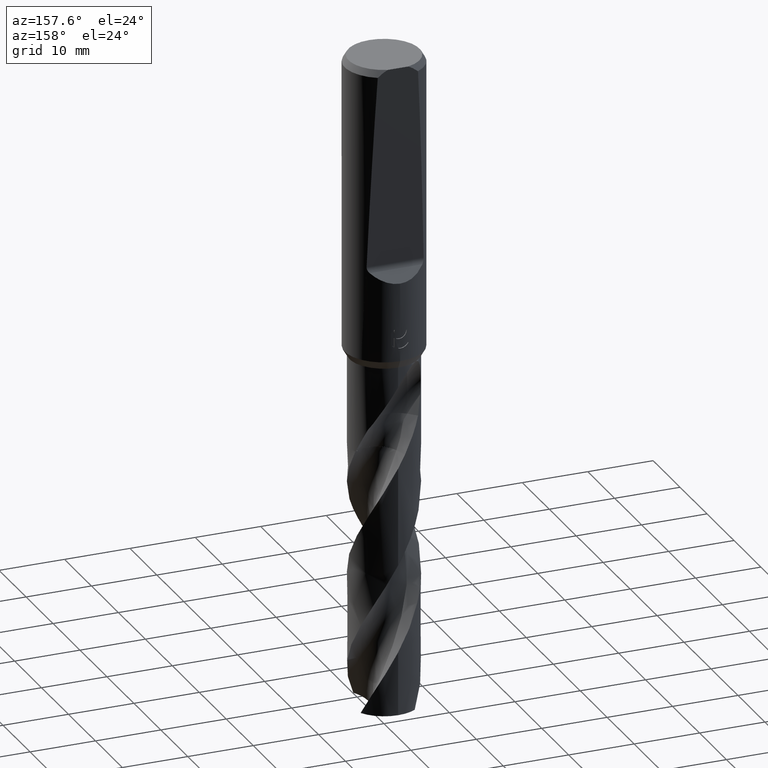
[diagram: clean part render]
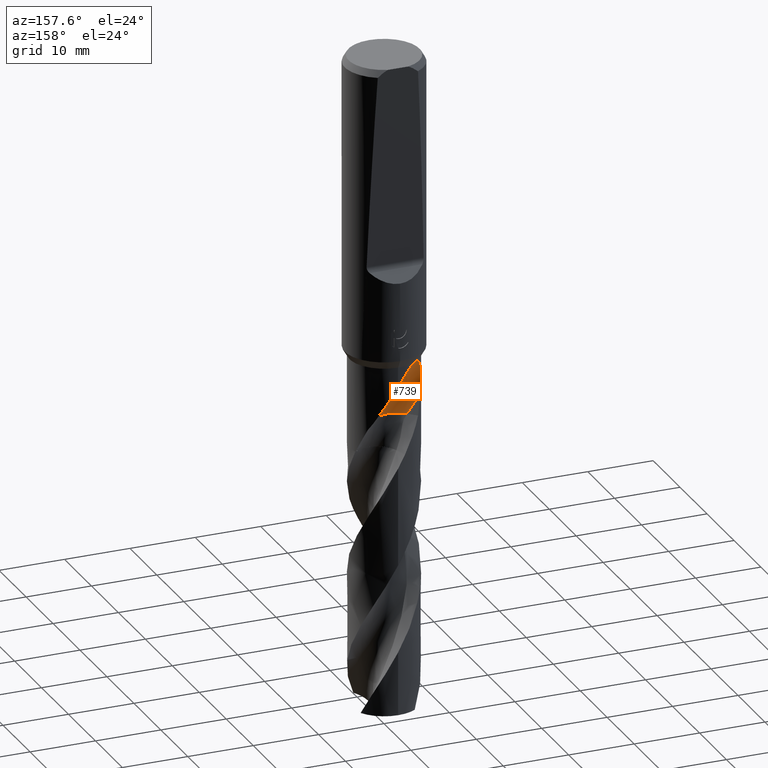
[diagram: same view with one face highlighted and labeled with its STEP entity id]
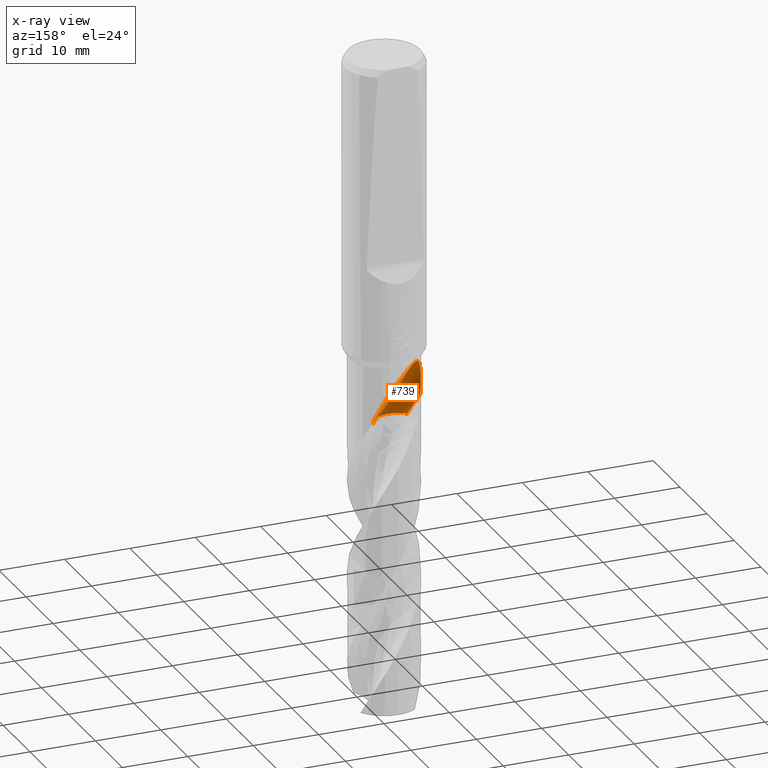
[diagram: x-ray of the same camera — body ghosted, the highlighted face saturated]
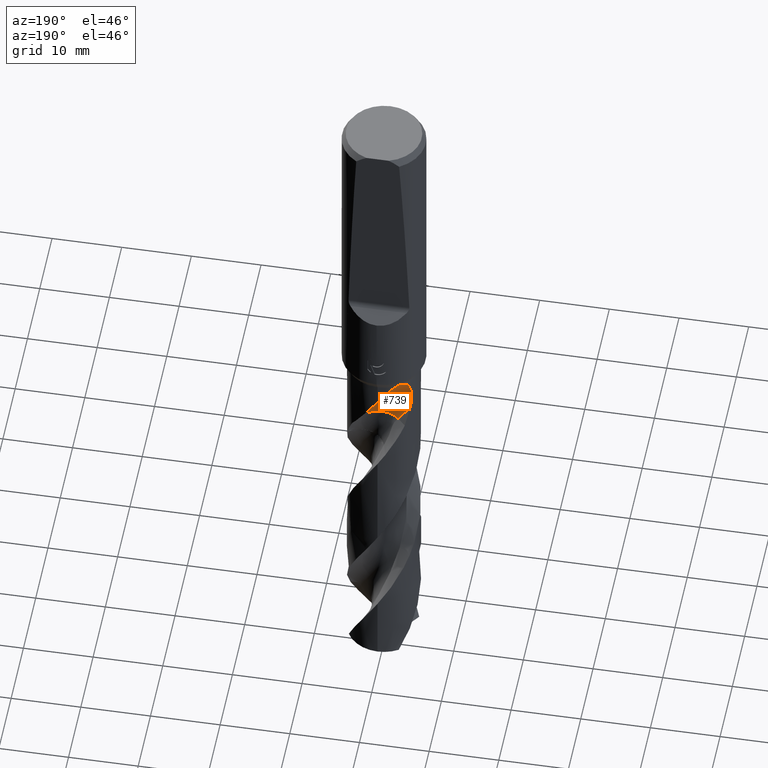
[diagram: same view with one face highlighted and labeled with its STEP entity id]
A machine part, auxiliary view. The second image highlights one B-rep face of the part: STEP entity #739.
The next image is the same camera in x-ray: the body ghosted, the highlighted face saturated — about 0% of this face is hidden behind the body in this view.
A second angle (auxiliary view) of the same face is appended — the face is thin or edge-on in the first view.
In plain terms, the highlighted face is a SurfaceOfRevolution surface.
Its self-contained STEP definition (entity closure, byte-faithful):
#443=VERTEX_POINT('',#1040);
#447=VERTEX_POINT('',#1044);
#461=EDGE_CURVE('',#443,#723,#1059,.T.);
#541=EDGE_CURVE('',#545,#447,#1150,.T.);
#545=VERTEX_POINT('',#1154);
#557=EDGE_CURVE('',#723,#793,#1166,.T.);
#691=VERTEX_POINT('',#1310);
#723=VERTEX_POINT('',#1345);
#739=ADVANCED_FACE('',(#1362),#1363,.F.);
#741=VERTEX_POINT('',#1365);
#765=EDGE_CURVE('',#691,#793,#1390,.T.);
#777=EDGE_CURVE('',#741,#545,#1404,.T.);
#793=VERTEX_POINT('',#1422);
#837=EDGE_CURVE('',#741,#443,#1468,.T.);
#867=EDGE_CURVE('',#447,#691,#1505,.T.);
#1040=CARTESIAN_POINT('',(-0.563884144710428,1.62070661058819,-54.943));
#1044=CARTESIAN_POINT('',(-2.9598529956268,4.33610081112963,-46.2990381056767));
#1059=CIRCLE('',#3233,3.5);
#1150=B_SPLINE_CURVE_WITH_KNOTS('',3,(#5947,#5948,#5949,#5950,#5951,#5952,#5953,#5954,#5955,#5956,#5957,#5958,#5959,#5960,#5961,#5962,#5963,#5964),.UNSPECIFIED.,.F.,.F.,(4,2,2,2,2,2,2,2,4),(0.0,2.5722039673442,3.97668789531394,5.24879679618654,6.72668103106432,8.50195842855616,9.81899737769767,10.3946869029931,10.8825103231949),.UNSPECIFIED.);
#1154=CARTESIAN_POINT('',(-1.55707245152386E-012,5.25,-49.3623709465314));
#1166=CIRCLE('',#6009,22.8126144757953);
#1310=CARTESIAN_POINT('',(-3.16898123829283,4.18569682506366,-46.2990381056767));
#1345=CARTESIAN_POINT('',(-2.47487373408221,2.6001262659178,-54.943));
#1362=FACE_OUTER_BOUND('',#7090,.T.);
#1363=SURFACE_OF_REVOLUTION('',#7091,#7092);
#1365=CARTESIAN_POINT('',(3.34537559219275,4.04610456453624,-54.943));
#1390=B_SPLINE_CURVE_WITH_KNOTS('',3,(#7199,#7200,#7201,#7202,#7203,#7204,#7205,#7206,#7207,#7208,#7209,#7210,#7211,#7212),.UNSPECIFIED.,.F.,.F.,(4,2,2,2,2,2,4),(0.0,0.484126072808781,1.05414913967225,1.91472869046466,3.26356083929064,4.49664085242722,5.80896964477966),.UNSPECIFIED.);
#1404=B_SPLINE_CURVE_WITH_KNOTS('',3,(#7231,#7232,#7233,#7234,#7235,#7236,#7237,#7238,#7239,#7240,#7241,#7242,#7243,#7244,#7245,#7246,#7247,#7248),.UNSPECIFIED.,.F.,.F.,(4,2,2,2,2,2,2,2,4),(0.0,2.5722039673442,3.97668789531394,5.24879679618654,6.72668103106432,8.50195842855616,9.81899737769767,10.3946869029931,10.8825103231949),.UNSPECIFIED.);
#1422=CARTESIAN_POINT('',(-4.27162135735454,3.052171518672,-52.0682038027643));
#1468=CIRCLE('',#8411,3.5);
#1505=B_SPLINE_CURVE_WITH_KNOTS('',3,(#9095,#9096,#9097,#9098,#9099,#9100,#9101,#9102),.UNSPECIFIED.,.F.,.F.,(4,2,2,4),(0.0,0.130553651183224,0.199332352535628,0.268049445421318),.UNSPECIFIED.);
#3233=AXIS2_PLACEMENT_3D('',#9274,#9275,#9276);
#5947=CARTESIAN_POINT('',(3.34537559219275,4.04610456453624,-54.943));
#5948=CARTESIAN_POINT('',(2.9990667338689,4.33243755062642,-54.2127804279131));
#5949=CARTESIAN_POINT('',(2.60089010837877,4.58696766397221,-53.5319800525282));
#5950=CARTESIAN_POINT('',(1.90658882888958,4.8989477540703,-52.3946565989927));
#5951=CARTESIAN_POINT('',(1.65674655494997,4.98869265757423,-51.994507891602));
#5952=CARTESIAN_POINT('',(1.17308350635676,5.12281949480105,-51.2199238669429));
#5953=CARTESIAN_POINT('',(0.941422265390577,5.17020618545123,-50.8490989748221));
#5954=CARTESIAN_POINT('',(0.439973294456265,5.2385968395185,-50.0498730264765));
#5955=CARTESIAN_POINT('',(0.165996949645549,5.25465305516356,-49.6152160187523));
#5956=CARTESIAN_POINT('',(-0.442434502733854,5.24185480793764,-48.6853411036771));
#5957=CARTESIAN_POINT('',(-0.803172933379598,5.20227038148179,-48.1562320779854));
#5958=CARTESIAN_POINT('',(-1.45228863481317,5.05310061367272,-47.3421150852057));
#5959=CARTESIAN_POINT('',(-1.76846918394839,4.95631366522425,-46.9877356922006));
#5960=CARTESIAN_POINT('',(-2.24346330529755,4.74912793848425,-46.6058015976245));
#5961=CARTESIAN_POINT('',(-2.39661591741944,4.67452312805833,-46.5018335753295));
#5962=CARTESIAN_POINT('',(-2.68729785682753,4.51267319615454,-46.3602694667765));
#5963=CARTESIAN_POINT('',(-2.82360640681281,4.42910369358336,-46.3149903365927));
#5964=CARTESIAN_POINT('',(-2.9598529956268,4.33610081112963,-46.2990381056767));
#6009=AXIS2_PLACEMENT_3D('',#9385,#9386,#9387);
#7090=EDGE_LOOP('',(#9564,#9565,#9566,#9567,#9568,#9569,#9570));
#7091=(B_SPLINE_CURVE(3,(#9572,#9573,#9574,#9575,#9576,#9577,#9578,#9579,#9580),.UNSPECIFIED.,.F.,.F.)B_SPLINE_CURVE_WITH_KNOTS((4,1,3,1,4),(-2.85636986122833,-2.5535810689409,-2.25079227665346,-1.94800348436603,-1.64521469207859),.UNSPECIFIED.)RATIONAL_B_SPLINE_CURVE((1.09168105273488,1.03056035091163,0.969439649088372,1.03056035091163,1.09168105273488,1.03056035091163,0.969439649088372,1.03056035091163,1.09168105273488))BOUNDED_CURVE()REPRESENTATION_ITEM('')GEOMETRIC_REPRESENTATION_ITEM()CURVE());
#7092=AXIS1_PLACEMENT('',#9587,#9588);
#7199=CARTESIAN_POINT('',(-3.16898123829283,4.18569682506366,-46.2990381056767));
#7200=CARTESIAN_POINT('',(-3.29701231621136,4.08876479658689,-46.3149827280889));
#7201=CARTESIAN_POINT('',(-3.41443442192497,3.99061596754176,-46.3608079363659));
#7202=CARTESIAN_POINT('',(-3.64777632228376,3.77957300424423,-46.5173243923612));
#7203=CARTESIAN_POINT('',(-3.75480324998803,3.67176006308655,-46.6346853773976));
#7204=CARTESIAN_POINT('',(-3.98318277155089,3.42600121772498,-46.9744322543223));
#7205=CARTESIAN_POINT('',(-4.08648974524986,3.29849518145349,-47.2228035862082));
#7206=CARTESIAN_POINT('',(-4.29002614055012,3.03312733802146,-47.8837823134912));
#7207=CARTESIAN_POINT('',(-4.37496810643494,2.90331488113431,-48.3755879750456));
#7208=CARTESIAN_POINT('',(-4.46188468175437,2.7676713615047,-49.4337595320845));
#7209=CARTESIAN_POINT('',(-4.46797816733692,2.75708308944152,-49.951717164294));
#7210=CARTESIAN_POINT('',(-4.42091527761467,2.83197594658296,-51.0085512772827));
#7211=CARTESIAN_POINT('',(-4.3638288638694,2.92312387120931,-51.5437494398621));
#7212=CARTESIAN_POINT('',(-4.27162135735455,3.05217151867199,-52.0682038027643));
#7231=CARTESIAN_POINT('',(3.34537559219275,4.04610456453624,-54.943));
#7232=CARTESIAN_POINT('',(2.9990667338689,4.33243755062642,-54.2127804279131));
#7233=CARTESIAN_POINT('',(2.60089010837877,4.58696766397221,-53.5319800525282));
#7234=CARTESIAN_POINT('',(1.90658882888958,4.8989477540703,-52.3946565989927));
#7235=CARTESIAN_POINT('',(1.65674655494997,4.98869265757423,-51.994507891602));
#7236=CARTESIAN_POINT('',(1.17308350635676,5.12281949480105,-51.2199238669429));
#7237=CARTESIAN_POINT('',(0.941422265390577,5.17020618545123,-50.8490989748221));
#7238=CARTESIAN_POINT('',(0.439973294456265,5.2385968395185,-50.0498730264765));
#7239=CARTESIAN_POINT('',(0.165996949645549,5.25465305516356,-49.6152160187523));
#7240=CARTESIAN_POINT('',(-0.442434502733854,5.24185480793764,-48.6853411036771));
#7241=CARTESIAN_POINT('',(-0.803172933379598,5.20227038148179,-48.1562320779854));
#7242=CARTESIAN_POINT('',(-1.45228863481317,5.05310061367272,-47.3421150852057));
#7243=CARTESIAN_POINT('',(-1.76846918394839,4.95631366522425,-46.9877356922006));
#7244=CARTESIAN_POINT('',(-2.24346330529755,4.74912793848425,-46.6058015976245));
#7245=CARTESIAN_POINT('',(-2.39661591741944,4.67452312805833,-46.5018335753295));
#7246=CARTESIAN_POINT('',(-2.68729785682753,4.51267319615454,-46.3602694667765));
#7247=CARTESIAN_POINT('',(-2.82360640681281,4.42910369358336,-46.3149903365927));
#7248=CARTESIAN_POINT('',(-2.9598529956268,4.33610081112963,-46.2990381056767));
#8411=AXIS2_PLACEMENT_3D('',#9658,#9659,#9660);
#9095=CARTESIAN_POINT('',(-2.95985299562679,4.33610081112964,-46.2990381056767));
#9096=CARTESIAN_POINT('',(-2.99772656451861,4.32058410564487,-46.284251935299));
#9097=CARTESIAN_POINT('',(-3.03531941898289,4.30086150354219,-46.2749561234811));
#9098=CARTESIAN_POINT('',(-3.08970143443579,4.26276091778291,-46.2736107379493));
#9099=CARTESIAN_POINT('',(-3.10737886061416,4.24853992587701,-46.2754971721454));
#9100=CARTESIAN_POINT('',(-3.14045181769882,4.21801135885323,-46.2840298981742));
#9101=CARTESIAN_POINT('',(-3.15543078047218,4.20209247906525,-46.290563893593));
#9102=CARTESIAN_POINT('',(-3.16898123829278,4.18569682506371,-46.2990381056767));
#9274=CARTESIAN_POINT('',(1.87083351824082E-005,5.07498129166482,-54.943));
#9275=DIRECTION('',(0.0,0.0,-1.0));
#9276=DIRECTION('',(0.707101435927723,0.707112126404966,0.0));
#9385=CARTESIAN_POINT('',(-1.77968448293552,25.375,-56.0553028018347));
#9386=DIRECTION('',(-0.847998304005088,0.0,-0.52999894000318));
#9387=DIRECTION('',(-0.0535598122533606,-0.994880693138896,0.085695699605377));
#9564=ORIENTED_EDGE('',*,*,#765,.F.);
#9565=ORIENTED_EDGE('',*,*,#867,.F.);
#9566=ORIENTED_EDGE('',*,*,#541,.F.);
#9567=ORIENTED_EDGE('',*,*,#777,.F.);
#9568=ORIENTED_EDGE('',*,*,#837,.T.);
#9569=ORIENTED_EDGE('',*,*,#461,.T.);
#9570=ORIENTED_EDGE('',*,*,#557,.T.);
#9572=CARTESIAN_POINT('',(-2.47487373408221,2.6001262659178,-54.943));
#9573=CARTESIAN_POINT('',(-1.99011586187573,2.11536106478686,-54.943));
#9574=CARTESIAN_POINT('',(-0.729603598927301,1.42655595484029,-54.943));
#9575=CARTESIAN_POINT('',(0.698866228303004,1.5776109025398,-54.943));
#9576=CARTESIAN_POINT('',(1.33277455225659,1.83866210770083,-54.943));
#9577=CARTESIAN_POINT('',(1.96668287621017,2.09971331286186,-54.943));
#9578=CARTESIAN_POINT('',(3.08727207201612,2.99839206457176,-54.943));
#9579=CARTESIAN_POINT('',(3.49718185174119,4.37509741322761,-54.943));
#9580=CARTESIAN_POINT('',(3.49998935919366,5.06064800420947,-54.943));
#9587=CARTESIAN_POINT('',(-1.77968448293552,25.375,-56.0553028018347));
#9588=DIRECTION('',(0.847998304005088,-0.0,0.52999894000318));
#9658=CARTESIAN_POINT('',(1.87083351824082E-005,5.07498129166482,-54.943));
#9659=DIRECTION('',(0.0,0.0,-1.0));
#9660=DIRECTION('',(0.707101435927723,0.707112126404966,0.0));